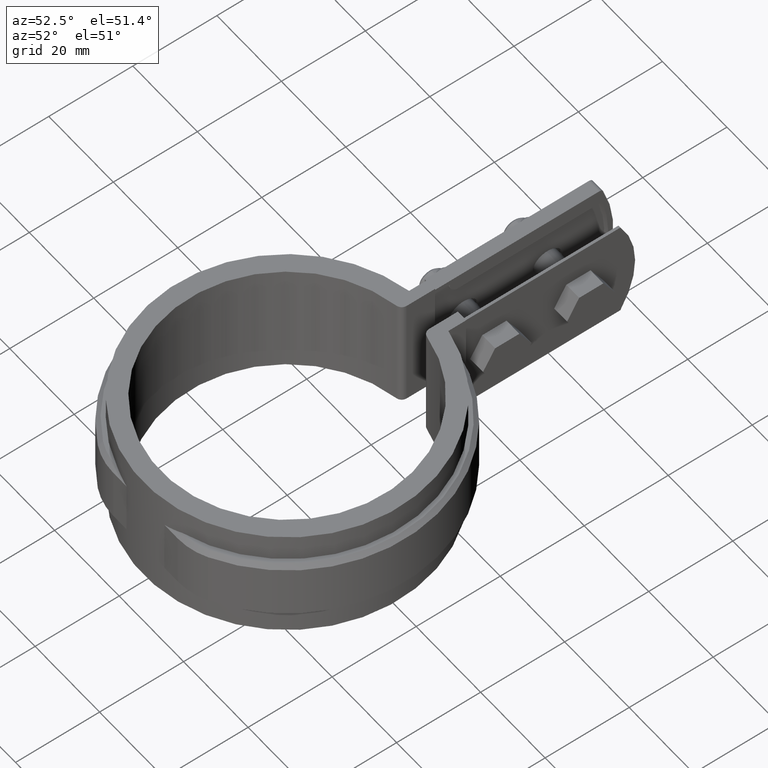
[diagram: clean part render]
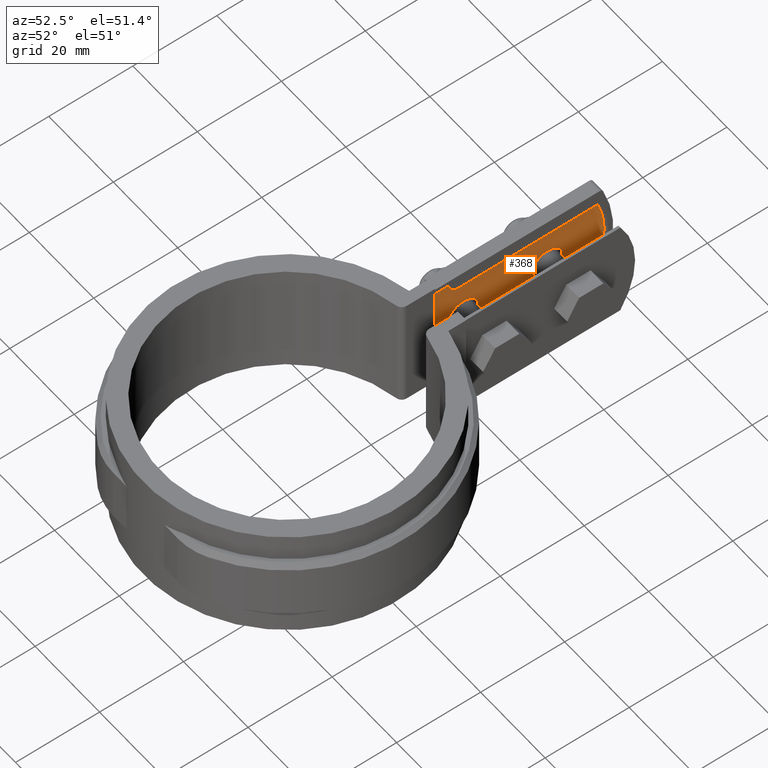
[diagram: same view with one face highlighted and labeled with its STEP entity id]
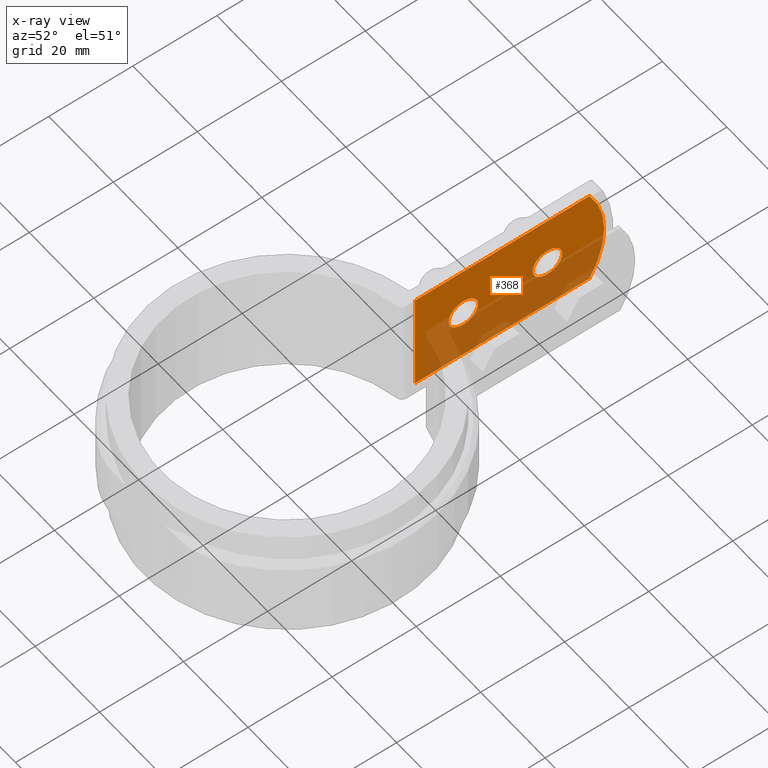
[diagram: x-ray of the same camera — body ghosted, the highlighted face saturated]
A machine part, auxiliary view. The second image highlights one B-rep face of the part: STEP entity #368.
The next image is the same camera in x-ray: the body ghosted, the highlighted face saturated — about 44% of this face is hidden behind the body in this view.
In plain terms, the highlighted planar face has unit normal (1, -0, 0).
Its self-contained STEP definition (entity closure, byte-faithful):
#368 = ADVANCED_FACE( '', ( #732, #733, #734 ), #735, .T. );
#732 = FACE_OUTER_BOUND( '', #1498, .T. );
#733 = FACE_BOUND( '', #1499, .T. );
#734 = FACE_BOUND( '', #1500, .T. );
#735 = PLANE( '', #1501 );
#1498 = EDGE_LOOP( '', ( #3229, #3230, #3231, #3232 ) );
#1499 = EDGE_LOOP( '', ( #3233 ) );
#1500 = EDGE_LOOP( '', ( #3234 ) );
#1501 = AXIS2_PLACEMENT_3D( '', #3235, #3236, #3237 );
#3229 = ORIENTED_EDGE( '', *, *, #7068, .T. );
#3230 = ORIENTED_EDGE( '', *, *, #7069, .T. );
#3231 = ORIENTED_EDGE( '', *, *, #7070, .T. );
#3232 = ORIENTED_EDGE( '', *, *, #7071, .F. );
#3233 = ORIENTED_EDGE( '', *, *, #7072, .T. );
#3234 = ORIENTED_EDGE( '', *, *, #7073, .T. );
#3235 = CARTESIAN_POINT( '', ( -4.50000000000000, 78.8989738519283, 0.000000000000000 ) );
#3236 = DIRECTION( '', ( 1.00000000000000, -6.12303176911189E-017, 0.000000000000000 ) );
#3237 = DIRECTION( '', ( 0.000000000000000, 0.000000000000000, 1.00000000000000 ) );
#7068 = EDGE_CURVE( '', #8029, #8030, #8031, .T. );
#7069 = EDGE_CURVE( '', #8030, #8032, #8033, .T. );
#7070 = EDGE_CURVE( '', #8032, #8034, #8035, .T. );
#7071 = EDGE_CURVE( '', #8029, #8034, #8036, .F. );
#7072 = EDGE_CURVE( '', #8037, #8037, #8038, .F. );
#7073 = EDGE_CURVE( '', #8039, #8039, #8040, .F. );
#8029 = VERTEX_POINT( '', #9884 );
#8030 = VERTEX_POINT( '', #9885 );
#8031 = CIRCLE( '', #9886, 24.0000000000000 );
#8032 = VERTEX_POINT( '', #9887 );
#8033 = LINE( '', #9888, #9889 );
#8034 = VERTEX_POINT( '', #9890 );
#8035 = LINE( '', #9891, #9892 );
#8036 = LINE( '', #9893, #9894 );
#8037 = VERTEX_POINT( '', #9895 );
#8038 = CIRCLE( '', #9896, 3.50000000000000 );
#8039 = VERTEX_POINT( '', #9897 );
#8040 = CIRCLE( '', #9898, 3.50000000000000 );
#9884 = CARTESIAN_POINT( '', ( -4.50000000000000, 75.3867751004762, -25.0000000000000 ) );
#9885 = CARTESIAN_POINT( '', ( -4.50000000000000, 75.3867751004762, -9.62792223410028E-031 ) );
#9886 = AXIS2_PLACEMENT_3D( '', #13670, #13671, #13672 );
#9887 = CARTESIAN_POINT( '', ( -4.50000000000000, 33.8797874845756, 0.000000000000000 ) );
#9888 = CARTESIAN_POINT( '', ( -4.50000000000000, 78.8989738519283, 0.000000000000000 ) );
#9889 = VECTOR( '', #13673, 1000.00000000000 );
#9890 = CARTESIAN_POINT( '', ( -4.50000000000000, 33.8797874845756, -25.0000000000000 ) );
#9891 = CARTESIAN_POINT( '', ( -4.50000000000000, 33.8797874845756, 0.000000000000000 ) );
#9892 = VECTOR( '', #13674, 1000.00000000000 );
#9893 = CARTESIAN_POINT( '', ( -4.50000000000000, 78.8989738519283, -25.0000000000000 ) );
#9894 = VECTOR( '', #13675, 1000.00000000000 );
#9895 = CARTESIAN_POINT( '', ( -4.50000000000000, 68.8989738519283, -12.5000000000000 ) );
#9896 = AXIS2_PLACEMENT_3D( '', #13676, #13677, #13678 );
#9897 = CARTESIAN_POINT( '', ( -4.50000000000000, 48.8989738519283, -12.5000000000000 ) );
#9898 = AXIS2_PLACEMENT_3D( '', #13679, #13680, #13681 );
#13670 = CARTESIAN_POINT( '', ( -4.50000000000000, 54.8989738519283, -12.5000000000000 ) );
#13671 = DIRECTION( '', ( 1.00000000000000, -6.12303176911189E-017, 0.000000000000000 ) );
#13672 = DIRECTION( '', ( 6.12303176911189E-017, 1.00000000000000, 0.000000000000000 ) );
#13673 = DIRECTION( '', ( -6.12303176911189E-017, -1.00000000000000, 0.000000000000000 ) );
#13674 = DIRECTION( '', ( 0.000000000000000, 0.000000000000000, -1.00000000000000 ) );
#13675 = DIRECTION( '', ( 6.12303176911189E-017, 1.00000000000000, 0.000000000000000 ) );
#13676 = CARTESIAN_POINT( '', ( -4.50000000000000, 65.3989738519283, -12.5000000000000 ) );
#13677 = DIRECTION( '', ( 1.00000000000000, -6.12303176911189E-017, 0.000000000000000 ) );
#13678 = DIRECTION( '', ( 6.12303176911189E-017, 1.00000000000000, 0.000000000000000 ) );
#13679 = CARTESIAN_POINT( '', ( -4.50000000000000, 45.3989738519283, -12.5000000000000 ) );
#13680 = DIRECTION( '', ( 1.00000000000000, -6.12303176911189E-017, 0.000000000000000 ) );
#13681 = DIRECTION( '', ( 6.12303176911189E-017, 1.00000000000000, 0.000000000000000 ) );